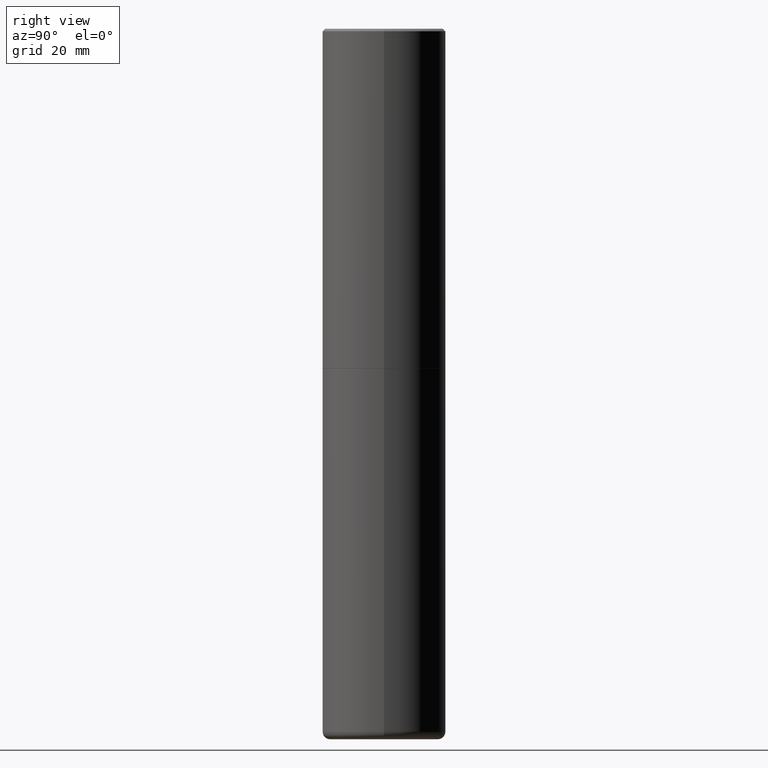
[diagram: clean part render]
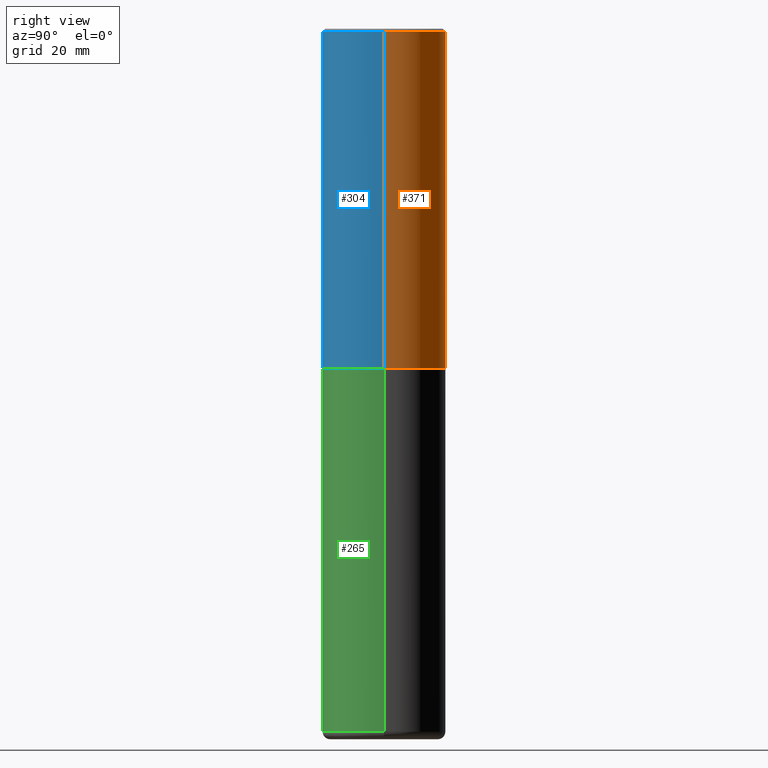
[diagram: same view with three faces highlighted in distinct colors, each labeled with its STEP entity id]
A machine part, right view with three faces highlighted in distinct colors.
Their STEP definitions:

[orange] entity #371 — the highlighted cylindrical surface (partial cylindrical patch) has radius 12.7 mm, axis along (-0, 0, 1).
#1 = DIRECTION ( 'NONE',  ( -2.445468806185136877E-29, 3.491481338843145188E-15, 1.000000000000000000 ) ) ;
#10 = VECTOR ( 'NONE', #105, 39.37007874015748143 ) ;
#29 = LINE ( 'NONE', #156, #238 ) ;
#41 = DIRECTION ( 'NONE',  ( -2.445468806185136597E-29, 3.491481338843145583E-15, 1.000000000000000000 ) ) ;
#48 = CARTESIAN_POINT ( 'NONE',  ( -0.5000000000000003331, -1.281242234827830793E-15, -2.748999999999999666 ) ) ;
#54 = DIRECTION ( 'NONE',  ( -2.445468806185136597E-29, 3.491481338843145583E-15, 1.000000000000000000 ) ) ;
#58 = AXIS2_PLACEMENT_3D ( 'NONE', #118, #346, #249 ) ;
#61 = VERTEX_POINT ( 'NONE', #237 ) ;
#93 = AXIS2_PLACEMENT_3D ( 'NONE', #333, #41, #325 ) ;
#105 = DIRECTION ( 'NONE',  ( -2.445468806185136877E-29, 3.491481338843145188E-15, 1.000000000000000000 ) ) ;
#110 = FACE_OUTER_BOUND ( 'NONE', #385, .T. ) ;
#118 = CARTESIAN_POINT ( 'NONE',  ( 0.000000000000000000, 0.000000000000000000, 0.000000000000000000 ) ) ;
#122 = EDGE_CURVE ( 'NONE', #331, #343, #200, .T. ) ;
#156 = CARTESIAN_POINT ( 'NONE',  ( 0.5000000000000002220, -3.491481338843134933E-15, 2.438088387897969017E-29 ) ) ;
#188 = EDGE_CURVE ( 'NONE', #61, #331, #29, .T. ) ;
#200 = CIRCLE ( 'NONE', #261, 0.5000000000000001110 ) ;
#209 = CARTESIAN_POINT ( 'NONE',  ( -0.5000000000000002220, 3.552713678800502507E-15, -2.459467545127454012E-29 ) ) ;
#213 = CYLINDRICAL_SURFACE ( 'NONE', #58, 0.5000000000000002220 ) ;
#223 = CIRCLE ( 'NONE', #93, 0.5000000000000003331 ) ;
#231 = EDGE_CURVE ( 'NONE', #349, #343, #241, .T. ) ;
#237 = CARTESIAN_POINT ( 'NONE',  ( 0.5000000000000003331, -1.308956353932294179E-14, -2.748999999999999666 ) ) ;
#238 = VECTOR ( 'NONE', #1, 39.37007874015748143 ) ;
#241 = LINE ( 'NONE', #209, #10 ) ;
#248 = ORIENTED_EDGE ( 'NONE', *, *, #188, .F. ) ;
#249 = DIRECTION ( 'NONE',  ( 1.000000000000000000, -6.982962677686266711E-15, 4.876176775795935793E-29 ) ) ;
#261 = AXIS2_PLACEMENT_3D ( 'NONE', #404, #54, #380 ) ;
#264 = EDGE_CURVE ( 'NONE', #61, #349, #223, .T. ) ;
#280 = CARTESIAN_POINT ( 'NONE',  ( 0.5000000000000001110, -3.500078625662629868E-15, -0.02000000000000010797 ) ) ;
#283 = ORIENTED_EDGE ( 'NONE', *, *, #264, .T. ) ;
#306 = ORIENTED_EDGE ( 'NONE', *, *, #231, .T. ) ;
#325 = DIRECTION ( 'NONE',  ( 1.000000000000000000, -6.982962677686265922E-15, 0.000000000000000000 ) ) ;
#331 = VERTEX_POINT ( 'NONE', #280 ) ;
#333 = CARTESIAN_POINT ( 'NONE',  ( 6.722593748202938917E-29, -9.598082200479805274E-15, -2.748999999999999666 ) ) ;
#343 = VERTEX_POINT ( 'NONE', #406 ) ;
#346 = DIRECTION ( 'NONE',  ( -2.445468806185136597E-29, 3.491481338843145583E-15, 1.000000000000000000 ) ) ;
#349 = VERTEX_POINT ( 'NONE', #48 ) ;
#371 = ADVANCED_FACE ( 'NONE', ( #110 ), #213, .T. ) ;
#380 = DIRECTION ( 'NONE',  ( 1.000000000000000000, -6.982962677686265922E-15, 0.000000000000000000 ) ) ;
#385 = EDGE_LOOP ( 'NONE', ( #283, #306, #418, #248 ) ) ;
#404 = CARTESIAN_POINT ( 'NONE',  ( 4.890937612370299433E-31, -6.982962677686328587E-17, -0.02000000000000010797 ) ) ;
#406 = CARTESIAN_POINT ( 'NONE',  ( -0.5000000000000001110, 3.421651712066270452E-15, -0.02000000000000010797 ) ) ;
#418 = ORIENTED_EDGE ( 'NONE', *, *, #122, .F. ) ;

[blue] entity #304 — the highlighted cylindrical surface (partial cylindrical patch) has radius 12.7 mm, axis along (-0, 0, 1).
#1 = DIRECTION ( 'NONE',  ( -2.445468806185136877E-29, 3.491481338843145188E-15, 1.000000000000000000 ) ) ;
#10 = VECTOR ( 'NONE', #105, 39.37007874015748143 ) ;
#29 = LINE ( 'NONE', #156, #238 ) ;
#46 = EDGE_CURVE ( 'NONE', #349, #61, #131, .T. ) ;
#48 = CARTESIAN_POINT ( 'NONE',  ( -0.5000000000000003331, -1.281242234827830793E-15, -2.748999999999999666 ) ) ;
#49 = AXIS2_PLACEMENT_3D ( 'NONE', #56, #186, #311 ) ;
#56 = CARTESIAN_POINT ( 'NONE',  ( 4.890937612370299433E-31, -6.982962677686328587E-17, -0.02000000000000010797 ) ) ;
#60 = ORIENTED_EDGE ( 'NONE', *, *, #123, .F. ) ;
#61 = VERTEX_POINT ( 'NONE', #237 ) ;
#71 = DIRECTION ( 'NONE',  ( 1.000000000000000000, -6.982962677686266711E-15, 4.876176775795935793E-29 ) ) ;
#105 = DIRECTION ( 'NONE',  ( -2.445468806185136877E-29, 3.491481338843145188E-15, 1.000000000000000000 ) ) ;
#123 = EDGE_CURVE ( 'NONE', #343, #331, #415, .T. ) ;
#131 = CIRCLE ( 'NONE', #270, 0.5000000000000003331 ) ;
#133 = FACE_OUTER_BOUND ( 'NONE', #214, .T. ) ;
#156 = CARTESIAN_POINT ( 'NONE',  ( 0.5000000000000002220, -3.491481338843134933E-15, 2.438088387897969017E-29 ) ) ;
#157 = ORIENTED_EDGE ( 'NONE', *, *, #46, .T. ) ;
#186 = DIRECTION ( 'NONE',  ( -2.445468806185136597E-29, 3.491481338843145583E-15, 1.000000000000000000 ) ) ;
#188 = EDGE_CURVE ( 'NONE', #61, #331, #29, .T. ) ;
#208 = DIRECTION ( 'NONE',  ( 1.000000000000000000, -6.982962677686265922E-15, 0.000000000000000000 ) ) ;
#209 = CARTESIAN_POINT ( 'NONE',  ( -0.5000000000000002220, 3.552713678800502507E-15, -2.459467545127454012E-29 ) ) ;
#214 = EDGE_LOOP ( 'NONE', ( #291, #157, #220, #60 ) ) ;
#220 = ORIENTED_EDGE ( 'NONE', *, *, #188, .T. ) ;
#231 = EDGE_CURVE ( 'NONE', #349, #343, #241, .T. ) ;
#236 = CYLINDRICAL_SURFACE ( 'NONE', #393, 0.5000000000000002220 ) ;
#237 = CARTESIAN_POINT ( 'NONE',  ( 0.5000000000000003331, -1.308956353932294179E-14, -2.748999999999999666 ) ) ;
#238 = VECTOR ( 'NONE', #1, 39.37007874015748143 ) ;
#241 = LINE ( 'NONE', #209, #10 ) ;
#270 = AXIS2_PLACEMENT_3D ( 'NONE', #278, #364, #208 ) ;
#278 = CARTESIAN_POINT ( 'NONE',  ( 6.722593748202938917E-29, -9.598082200479805274E-15, -2.748999999999999666 ) ) ;
#280 = CARTESIAN_POINT ( 'NONE',  ( 0.5000000000000001110, -3.500078625662629868E-15, -0.02000000000000010797 ) ) ;
#291 = ORIENTED_EDGE ( 'NONE', *, *, #231, .F. ) ;
#304 = ADVANCED_FACE ( 'NONE', ( #133 ), #236, .T. ) ;
#311 = DIRECTION ( 'NONE',  ( 1.000000000000000000, -6.982962677686265922E-15, 0.000000000000000000 ) ) ;
#328 = CARTESIAN_POINT ( 'NONE',  ( 0.000000000000000000, 0.000000000000000000, 0.000000000000000000 ) ) ;
#331 = VERTEX_POINT ( 'NONE', #280 ) ;
#343 = VERTEX_POINT ( 'NONE', #406 ) ;
#349 = VERTEX_POINT ( 'NONE', #48 ) ;
#358 = DIRECTION ( 'NONE',  ( -2.445468806185136597E-29, 3.491481338843145583E-15, 1.000000000000000000 ) ) ;
#364 = DIRECTION ( 'NONE',  ( -2.445468806185136597E-29, 3.491481338843145583E-15, 1.000000000000000000 ) ) ;
#393 = AXIS2_PLACEMENT_3D ( 'NONE', #328, #358, #71 ) ;
#406 = CARTESIAN_POINT ( 'NONE',  ( -0.5000000000000001110, 3.421651712066270452E-15, -0.02000000000000010797 ) ) ;
#415 = CIRCLE ( 'NONE', #49, 0.5000000000000001110 ) ;

[green] entity #265 — the highlighted cylindrical surface (partial cylindrical patch) has radius 12.7 mm, axis along (-0, 0, 1).
#21 = DIRECTION ( 'NONE',  ( -2.445468806185136597E-29, 3.491481338843145583E-15, 1.000000000000000000 ) ) ;
#23 = CARTESIAN_POINT ( 'NONE',  ( 6.725039217009123399E-29, -9.601573681818648281E-15, -2.749999999999999556 ) ) ;
#31 = VERTEX_POINT ( 'NONE', #276 ) ;
#37 = DIRECTION ( 'NONE',  ( -2.445468806185136877E-29, 3.491481338843145188E-15, 1.000000000000000000 ) ) ;
#43 = VECTOR ( 'NONE', #37, 39.37007874015748143 ) ;
#83 = DIRECTION ( 'NONE',  ( -2.445468806185136597E-29, 3.491481338843145583E-15, 1.000000000000000000 ) ) ;
#90 = ORIENTED_EDGE ( 'NONE', *, *, #206, .F. ) ;
#111 = VERTEX_POINT ( 'NONE', #256 ) ;
#117 = AXIS2_PLACEMENT_3D ( 'NONE', #23, #21, #366 ) ;
#121 = ORIENTED_EDGE ( 'NONE', *, *, #329, .F. ) ;
#152 = AXIS2_PLACEMENT_3D ( 'NONE', #166, #301, #390 ) ;
#153 = LINE ( 'NONE', #308, #210 ) ;
#166 = CARTESIAN_POINT ( 'NONE',  ( 0.000000000000000000, 0.000000000000000000, 0.000000000000000000 ) ) ;
#172 = FACE_OUTER_BOUND ( 'NONE', #396, .T. ) ;
#174 = ORIENTED_EDGE ( 'NONE', *, *, #388, .T. ) ;
#176 = DIRECTION ( 'NONE',  ( 1.000000000000000000, -6.982962677686263555E-15, 0.000000000000000000 ) ) ;
#177 = VERTEX_POINT ( 'NONE', #192 ) ;
#192 = CARTESIAN_POINT ( 'NONE',  ( 0.5000000000000000000, -1.309305502066178164E-14, -2.749999999999999556 ) ) ;
#195 = AXIS2_PLACEMENT_3D ( 'NONE', #398, #83, #176 ) ;
#206 = EDGE_CURVE ( 'NONE', #218, #31, #234, .T. ) ;
#210 = VECTOR ( 'NONE', #373, 39.37007874015748143 ) ;
#218 = VERTEX_POINT ( 'NONE', #294 ) ;
#234 = LINE ( 'NONE', #287, #43 ) ;
#256 = CARTESIAN_POINT ( 'NONE',  ( 0.5000000000000002220, -2.335801015686062967E-14, -5.689999999999999503 ) ) ;
#265 = ADVANCED_FACE ( 'NONE', ( #172 ), #336, .T. ) ;
#276 = CARTESIAN_POINT ( 'NONE',  ( -0.5000000000000000000, -1.118133757111757137E-14, -2.749999999999999556 ) ) ;
#287 = CARTESIAN_POINT ( 'NONE',  ( -0.5000000000000000000, 3.552713678800500929E-15, -2.459467545127452891E-29 ) ) ;
#294 = CARTESIAN_POINT ( 'NONE',  ( -0.5000000000000002220, -1.631381513921699223E-14, -5.689999999999999503 ) ) ;
#301 = DIRECTION ( 'NONE',  ( -2.445468806185136597E-29, 3.491481338843145583E-15, 1.000000000000000000 ) ) ;
#308 = CARTESIAN_POINT ( 'NONE',  ( 0.5000000000000000000, -3.491481338843133355E-15, 2.438088387897967896E-29 ) ) ;
#320 = ORIENTED_EDGE ( 'NONE', *, *, #408, .T. ) ;
#329 = EDGE_CURVE ( 'NONE', #31, #177, #401, .T. ) ;
#336 = CYLINDRICAL_SURFACE ( 'NONE', #152, 0.5000000000000000000 ) ;
#366 = DIRECTION ( 'NONE',  ( 1.000000000000000000, -6.982962677686266711E-15, 0.000000000000000000 ) ) ;
#373 = DIRECTION ( 'NONE',  ( -2.445468806185136877E-29, 3.491481338843145188E-15, 1.000000000000000000 ) ) ;
#374 = CIRCLE ( 'NONE', #195, 0.4999999999999999445 ) ;
#388 = EDGE_CURVE ( 'NONE', #111, #177, #153, .T. ) ;
#390 = DIRECTION ( 'NONE',  ( 1.000000000000000000, -6.982962677686266711E-15, 4.876176775795935793E-29 ) ) ;
#396 = EDGE_LOOP ( 'NONE', ( #90, #320, #174, #121 ) ) ;
#398 = CARTESIAN_POINT ( 'NONE',  ( 1.391471750719342616E-28, -1.986652881801749632E-14, -5.689999999999999503 ) ) ;
#401 = CIRCLE ( 'NONE', #117, 0.5000000000000000000 ) ;
#408 = EDGE_CURVE ( 'NONE', #218, #111, #374, .T. ) ;